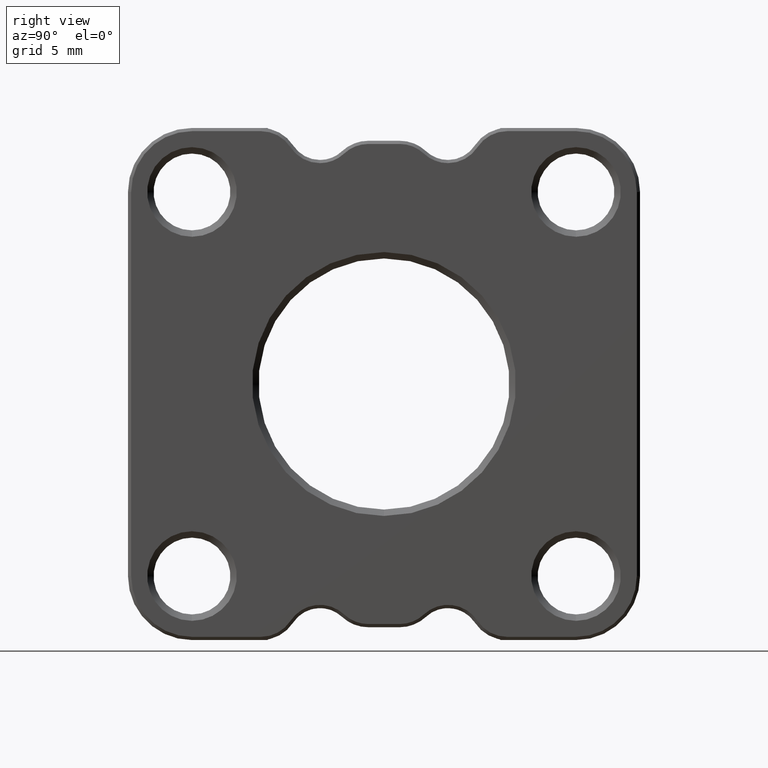
[diagram: clean part render]
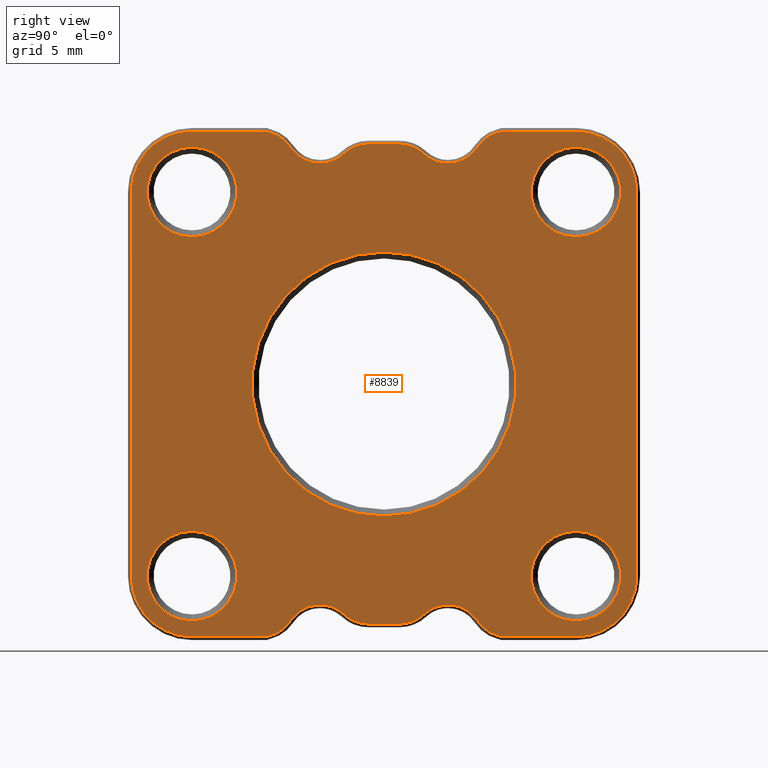
[diagram: same view with one face highlighted and labeled with its STEP entity id]
A machine part, right view. The second image highlights one B-rep face of the part: STEP entity #8839.
In plain terms, the highlighted planar face has unit normal (1, 0, 0).
Its self-contained STEP definition (entity closure, byte-faithful):
#46 = CIRCLE ( 'NONE', #1817, 2.749999999999999112 ) ;
#49 = DIRECTION ( 'NONE',  ( -1.000000000000000000, -0.000000000000000000, -0.000000000000000000 ) ) ;
#112 = FACE_BOUND ( 'NONE', #7837, .T. ) ;
#124 = AXIS2_PLACEMENT_3D ( 'NONE', #5749, #2857, #2245 ) ;
#142 = EDGE_CURVE ( 'NONE', #9167, #8801, #4616, .T. ) ;
#205 = CARTESIAN_POINT ( 'NONE',  ( -10.70960063692994879, 9.414187337732332850, 58.50000000000000711 ) ) ;
#224 = CARTESIAN_POINT ( 'NONE',  ( -10.70960063692994879, 2.109301223409109749, 40.00000000000001421 ) ) ;
#249 = DIRECTION ( 'NONE',  ( -1.000000000000000000, -0.000000000000000000, -0.000000000000000000 ) ) ;
#256 = DIRECTION ( 'NONE',  ( 0.000000000000000000, 0.000000000000000000, -1.000000000000000000 ) ) ;
#257 = LINE ( 'NONE', #3648, #5755 ) ;
#329 = CARTESIAN_POINT ( 'NONE',  ( -10.70960063692994879, 7.109301223409107529, 57.25000000000000711 ) ) ;
#345 = CIRCLE ( 'NONE', #4695, 2.750000000000002665 ) ;
#435 = VERTEX_POINT ( 'NONE', #2900 ) ;
#438 = EDGE_CURVE ( 'NONE', #2528, #3605, #8250, .T. ) ;
#503 = EDGE_CURVE ( 'NONE', #1560, #1470, #4861, .T. ) ;
#520 = CARTESIAN_POINT ( 'NONE',  ( -10.70960063692994879, 3.334384005773724624, 21.25000000000001421 ) ) ;
#541 = VERTEX_POINT ( 'NONE', #5083 ) ;
#566 = EDGE_CURVE ( 'NONE', #4600, #6508, #5985, .T. ) ;
#580 = EDGE_CURVE ( 'NONE', #5831, #5120, #1177, .T. ) ;
#584 = CARTESIAN_POINT ( 'NONE',  ( -10.70960063692994879, -7.500471005237348443, 20.25000000000000711 ) ) ;
#651 = CARTESIAN_POINT ( 'NONE',  ( -10.70960063692994879, 7.109301223409107529, 60.00000000000001421 ) ) ;
#652 = AXIS2_PLACEMENT_3D ( 'NONE', #651, #5642, #1381 ) ;
#665 = ORIENTED_EDGE ( 'NONE', *, *, #8200, .T. ) ;
#675 = CARTESIAN_POINT ( 'NONE',  ( -10.70960063692994879, 7.109301223409107529, 60.00000000000001421 ) ) ;
#711 = ORIENTED_EDGE ( 'NONE', *, *, #7652, .T. ) ;
#725 = CARTESIAN_POINT ( 'NONE',  ( -10.70960063692994879, 11.71907345205555906, 23.00000000000001066 ) ) ;
#756 = EDGE_CURVE ( 'NONE', #3605, #2528, #5043, .T. ) ;
#799 = CIRCLE ( 'NONE', #2563, 2.749999999999999112 ) ;
#850 = EDGE_LOOP ( 'NONE', ( #5809, #711 ) ) ;
#887 = EDGE_CURVE ( 'NONE', #6148, #5294, #8225, .T. ) ;
#939 = DIRECTION ( 'NONE',  ( 0.000000000000000000, -1.000000000000000000, 0.000000000000000000 ) ) ;
#948 = VECTOR ( 'NONE', #8593, 1000.000000000000000 ) ;
#994 = ORIENTED_EDGE ( 'NONE', *, *, #756, .T. ) ;
#1021 = CARTESIAN_POINT ( 'NONE',  ( -10.70960063692994879, -2.890698776590892916, 20.00000000000002132 ) ) ;
#1036 = CARTESIAN_POINT ( 'NONE',  ( -10.70960063692994879, 3.334384005773724624, 24.00000000000001421 ) ) ;
#1096 = DIRECTION ( 'NONE',  ( 1.000000000000000000, 0.000000000000000000, 0.000000000000000000 ) ) ;
#1116 = DIRECTION ( 'NONE',  ( -1.000000000000000000, -0.000000000000000000, -0.000000000000000000 ) ) ;
#1134 = AXIS2_PLACEMENT_3D ( 'NONE', #4858, #2029, #2132 ) ;
#1140 = DIRECTION ( 'NONE',  ( 0.000000000000000000, 0.000000000000000000, -1.000000000000000000 ) ) ;
#1162 = DIRECTION ( 'NONE',  ( 1.000000000000000000, 0.000000000000000000, 0.000000000000000000 ) ) ;
#1177 = LINE ( 'NONE', #7219, #948 ) ;
#1199 = CARTESIAN_POINT ( 'NONE',  ( -10.70960063692994879, 11.71907345205555906, 20.25000000000001066 ) ) ;
#1208 = AXIS2_PLACEMENT_3D ( 'NONE', #8886, #1867, #5307 ) ;
#1231 = DIRECTION ( 'NONE',  ( -1.000000000000000000, -0.000000000000000000, -0.000000000000000000 ) ) ;
#1234 = AXIS2_PLACEMENT_3D ( 'NONE', #7018, #3539, #4897 ) ;
#1265 = DIRECTION ( 'NONE',  ( 0.000000000000000000, -1.000000000000000000, -8.673617379884035472E-17 ) ) ;
#1300 = VERTEX_POINT ( 'NONE', #4722 ) ;
#1317 = VERTEX_POINT ( 'NONE', #9162 ) ;
#1362 = ORIENTED_EDGE ( 'NONE', *, *, #3434, .T. ) ;
#1381 = DIRECTION ( 'NONE',  ( 0.000000000000000000, 0.000000000000000000, -1.000000000000000000 ) ) ;
#1384 = DIRECTION ( 'NONE',  ( 0.000000000000000000, -1.000000000000000000, -8.673617379884035472E-17 ) ) ;
#1402 = LINE ( 'NONE', #9101, #1640 ) ;
#1412 = VERTEX_POINT ( 'NONE', #7118 ) ;
#1428 = DIRECTION ( 'NONE',  ( 0.000000000000000000, 0.000000000000000000, -1.000000000000000000 ) ) ;
#1454 = CARTESIAN_POINT ( 'NONE',  ( -10.70960063692994879, 3.334384005773724624, 56.00000000000001421 ) ) ;
#1470 = VERTEX_POINT ( 'NONE', #1513 ) ;
#1480 = CARTESIAN_POINT ( 'NONE',  ( -10.70960063692994879, 0.8842184410444899889, 24.00000000000001421 ) ) ;
#1513 = CARTESIAN_POINT ( 'NONE',  ( -10.70960063692994879, -12.89069877659088981, 58.50000000000002132 ) ) ;
#1539 = EDGE_CURVE ( 'NONE', #4856, #7739, #1904, .T. ) ;
#1560 = VERTEX_POINT ( 'NONE', #6845 ) ;
#1609 = AXIS2_PLACEMENT_3D ( 'NONE', #5735, #7221, #6605 ) ;
#1640 = VECTOR ( 'NONE', #1265, 1000.000000000000000 ) ;
#1679 = CARTESIAN_POINT ( 'NONE',  ( -10.70960063692994879, 0.8842184410444899889, 58.75000000000000711 ) ) ;
#1717 = LINE ( 'NONE', #8416, #7645 ) ;
#1730 = DIRECTION ( 'NONE',  ( 0.000000000000000000, 0.000000000000000000, -1.000000000000000000 ) ) ;
#1817 = AXIS2_PLACEMENT_3D ( 'NONE', #1036, #6803, #3174 ) ;
#1836 = DIRECTION ( 'NONE',  ( 0.000000000000000000, 0.000000000000000000, -1.000000000000000000 ) ) ;
#1838 = VECTOR ( 'NONE', #939, 1000.000000000000000 ) ;
#1859 = EDGE_CURVE ( 'NONE', #2207, #1412, #8245, .T. ) ;
#1867 = DIRECTION ( 'NONE',  ( -1.000000000000000000, -0.000000000000000000, -0.000000000000000000 ) ) ;
#1904 = CIRCLE ( 'NONE', #3769, 2.750000000000002665 ) ;
#1997 = CARTESIAN_POINT ( 'NONE',  ( -10.70960063692994879, -12.89069877659088981, 21.50000000000002487 ) ) ;
#2029 = DIRECTION ( 'NONE',  ( -1.000000000000000000, -0.000000000000000000, -0.000000000000000000 ) ) ;
#2132 = DIRECTION ( 'NONE',  ( 0.000000000000000000, 0.000000000000000000, -1.000000000000000000 ) ) ;
#2191 = ORIENTED_EDGE ( 'NONE', *, *, #1539, .T. ) ;
#2207 = VERTEX_POINT ( 'NONE', #5480 ) ;
#2244 = CARTESIAN_POINT ( 'NONE',  ( -10.70960063692994879, 21.85930122340910842, 55.00000000000000711 ) ) ;
#2245 = DIRECTION ( 'NONE',  ( 0.000000000000000000, 9.462128050782575008E-16, -1.000000000000000000 ) ) ;
#2254 = ORIENTED_EDGE ( 'NONE', *, *, #8099, .T. ) ;
#2274 = EDGE_CURVE ( 'NONE', #1412, #4864, #7300, .T. ) ;
#2315 = CIRCLE ( 'NONE', #8147, 4.750000000000000888 ) ;
#2360 = CARTESIAN_POINT ( 'NONE',  ( -10.70960063692994879, -17.64069877659089869, 25.00000000000000355 ) ) ;
#2404 = DIRECTION ( 'NONE',  ( 0.000000000000000000, 0.000000000000000000, -1.000000000000000000 ) ) ;
#2414 = DIRECTION ( 'NONE',  ( 0.000000000000000000, 0.000000000000000000, -1.000000000000000000 ) ) ;
#2439 = AXIS2_PLACEMENT_3D ( 'NONE', #4040, #1096, #5426 ) ;
#2473 = ORIENTED_EDGE ( 'NONE', *, *, #4725, .T. ) ;
#2482 = VERTEX_POINT ( 'NONE', #7991 ) ;
#2528 = VERTEX_POINT ( 'NONE', #3226 ) ;
#2542 = ORIENTED_EDGE ( 'NONE', *, *, #5293, .T. ) ;
#2562 = DIRECTION ( 'NONE',  ( 0.000000000000000000, 0.000000000000000000, -1.000000000000000000 ) ) ;
#2563 = AXIS2_PLACEMENT_3D ( 'NONE', #1021, #1116, #1730 ) ;
#2581 = ORIENTED_EDGE ( 'NONE', *, *, #142, .T. ) ;
#2654 = EDGE_LOOP ( 'NONE', ( #994, #3032 ) ) ;
#2665 = EDGE_LOOP ( 'NONE', ( #6160, #2581 ) ) ;
#2692 = CARTESIAN_POINT ( 'NONE',  ( -10.70960063692994879, -2.890698776590892916, 60.00000000000001421 ) ) ;
#2793 = DIRECTION ( 'NONE',  ( 1.000000000000000000, 0.000000000000000000, 0.000000000000000000 ) ) ;
#2806 = AXIS2_PLACEMENT_3D ( 'NONE', #725, #2793, #1428 ) ;
#2823 = AXIS2_PLACEMENT_3D ( 'NONE', #3905, #4573, #256 ) ;
#2828 = DIRECTION ( 'NONE',  ( 0.000000000000000000, 8.042808843165188066E-15, -1.000000000000000000 ) ) ;
#2857 = DIRECTION ( 'NONE',  ( -1.000000000000000000, -0.000000000000000000, -0.000000000000000000 ) ) ;
#2875 = DIRECTION ( 'NONE',  ( -1.000000000000000000, -0.000000000000000000, -0.000000000000000000 ) ) ;
#2880 = CIRCLE ( 'NONE', #4892, 2.749999999999995559 ) ;
#2900 = CARTESIAN_POINT ( 'NONE',  ( -10.70960063692994879, 17.10930122340910486, 59.75000000000001421 ) ) ;
#2933 = VERTEX_POINT ( 'NONE', #5645 ) ;
#2959 = EDGE_CURVE ( 'NONE', #435, #8818, #257, .T. ) ;
#3032 = ORIENTED_EDGE ( 'NONE', *, *, #438, .T. ) ;
#3033 = VERTEX_POINT ( 'NONE', #205 ) ;
#3084 = ORIENTED_EDGE ( 'NONE', *, *, #580, .T. ) ;
#3174 = DIRECTION ( 'NONE',  ( 0.000000000000000000, 0.000000000000000000, -1.000000000000000000 ) ) ;
#3189 = CARTESIAN_POINT ( 'NONE',  ( -10.70960063692994879, -17.64069877659089158, 25.00000000000000355 ) ) ;
#3226 = CARTESIAN_POINT ( 'NONE',  ( -10.70960063692994879, 17.10930122340911197, 28.50000000000002487 ) ) ;
#3306 = AXIS2_PLACEMENT_3D ( 'NONE', #2692, #7783, #2828 ) ;
#3360 = CARTESIAN_POINT ( 'NONE',  ( -10.70960063692994879, -7.500471005237337785, 57.00000000000000711 ) ) ;
#3362 = DIRECTION ( 'NONE',  ( 0.000000000000000000, 0.000000000000000000, -1.000000000000000000 ) ) ;
#3434 = EDGE_CURVE ( 'NONE', #3033, #6152, #345, .T. ) ;
#3445 = AXIS2_PLACEMENT_3D ( 'NONE', #3726, #3692, #8631 ) ;
#3451 = CARTESIAN_POINT ( 'NONE',  ( -10.70960063692994879, 3.334384005773724624, 21.25000000000001421 ) ) ;
#3477 = VERTEX_POINT ( 'NONE', #584 ) ;
#3486 = CARTESIAN_POINT ( 'NONE',  ( -10.70960063692994879, -5.195584890914118681, 21.50000000000001421 ) ) ;
#3496 = CIRCLE ( 'NONE', #6531, 3.500000000000010214 ) ;
#3539 = DIRECTION ( 'NONE',  ( -1.000000000000000000, -0.000000000000000000, -0.000000000000000000 ) ) ;
#3569 = ORIENTED_EDGE ( 'NONE', *, *, #887, .T. ) ;
#3601 = ORIENTED_EDGE ( 'NONE', *, *, #6213, .T. ) ;
#3605 = VERTEX_POINT ( 'NONE', #5192 ) ;
#3616 = DIRECTION ( 'NONE',  ( 1.000000000000000000, 0.000000000000000000, 0.000000000000000000 ) ) ;
#3648 = CARTESIAN_POINT ( 'NONE',  ( -10.70960063692994879, 11.71907345205555373, 59.75000000000001421 ) ) ;
#3674 = EDGE_CURVE ( 'NONE', #5816, #8716, #799, .T. ) ;
#3692 = DIRECTION ( 'NONE',  ( -1.000000000000000000, -0.000000000000000000, -0.000000000000000000 ) ) ;
#3718 = CARTESIAN_POINT ( 'NONE',  ( -10.70960063692994879, -2.890698776590892916, 60.00000000000001421 ) ) ;
#3726 = CARTESIAN_POINT ( 'NONE',  ( -10.70960063692994879, -12.89069877659088981, 55.00000000000001421 ) ) ;
#3741 = DIRECTION ( 'NONE',  ( 0.000000000000000000, 0.000000000000000000, -1.000000000000000000 ) ) ;
#3752 = FACE_OUTER_BOUND ( 'NONE', #4996, .T. ) ;
#3769 = AXIS2_PLACEMENT_3D ( 'NONE', #3360, #8343, #1140 ) ;
#3802 = CIRCLE ( 'NONE', #6760, 2.750000000000002665 ) ;
#3842 = LINE ( 'NONE', #7571, #5457 ) ;
#3899 = AXIS2_PLACEMENT_3D ( 'NONE', #8220, #3956, #2404 ) ;
#3905 = CARTESIAN_POINT ( 'NONE',  ( -10.70960063692994879, 17.10930122340910486, 55.00000000000000711 ) ) ;
#3926 = CARTESIAN_POINT ( 'NONE',  ( -10.70960063692994879, -12.89069877659088981, 55.00000000000001421 ) ) ;
#3954 = VERTEX_POINT ( 'NONE', #7883 ) ;
#3956 = DIRECTION ( 'NONE',  ( -1.000000000000000000, -0.000000000000000000, -0.000000000000000000 ) ) ;
#3993 = AXIS2_PLACEMENT_3D ( 'NONE', #7746, #1231, #3362 ) ;
#4004 = ORIENTED_EDGE ( 'NONE', *, *, #5600, .T. ) ;
#4040 = CARTESIAN_POINT ( 'NONE',  ( -10.70960063692994879, -12.89069877659089691, 25.00000000000000711 ) ) ;
#4090 = DIRECTION ( 'NONE',  ( 0.000000000000000000, 0.000000000000000000, -1.000000000000000000 ) ) ;
#4139 = CIRCLE ( 'NONE', #3899, 3.499999999999989342 ) ;
#4277 = ORIENTED_EDGE ( 'NONE', *, *, #7282, .T. ) ;
#4324 = DIRECTION ( 'NONE',  ( 0.000000000000000000, 0.000000000000000000, -1.000000000000000000 ) ) ;
#4327 = CARTESIAN_POINT ( 'NONE',  ( -10.70960063692994879, 2.109301223409109749, 29.69300000000001205 ) ) ;
#4405 = ORIENTED_EDGE ( 'NONE', *, *, #1859, .T. ) ;
#4463 = CIRCLE ( 'NONE', #5955, 4.750000000000004441 ) ;
#4547 = EDGE_CURVE ( 'NONE', #8716, #6672, #7768, .T. ) ;
#4573 = DIRECTION ( 'NONE',  ( 1.000000000000000000, 0.000000000000000000, 0.000000000000000000 ) ) ;
#4600 = VERTEX_POINT ( 'NONE', #5834 ) ;
#4616 = CIRCLE ( 'NONE', #6156, 10.30700000000000394 ) ;
#4619 = DIRECTION ( 'NONE',  ( 0.000000000000000000, 0.000000000000000000, -1.000000000000000000 ) ) ;
#4667 = ORIENTED_EDGE ( 'NONE', *, *, #7029, .T. ) ;
#4689 = CARTESIAN_POINT ( 'NONE',  ( -10.70960063692994879, -12.89069877659088981, 28.50000000000000355 ) ) ;
#4691 = CARTESIAN_POINT ( 'NONE',  ( -10.70960063692994879, 17.10930122340911197, 55.00000000000001421 ) ) ;
#4693 = CARTESIAN_POINT ( 'NONE',  ( -10.70960063692994879, -12.89069877659089336, 55.00000000000000711 ) ) ;
#4695 = AXIS2_PLACEMENT_3D ( 'NONE', #675, #2875, #7050 ) ;
#4722 = CARTESIAN_POINT ( 'NONE',  ( -10.70960063692994879, 17.10930122340911197, 51.50000000000000711 ) ) ;
#4725 = EDGE_CURVE ( 'NONE', #5294, #6148, #4139, .T. ) ;
#4729 = CARTESIAN_POINT ( 'NONE',  ( -10.70960063692994879, -5.195584890914117793, 58.50000000000000711 ) ) ;
#4856 = VERTEX_POINT ( 'NONE', #4729 ) ;
#4858 = CARTESIAN_POINT ( 'NONE',  ( -10.70960063692994879, 17.10930122340911197, 25.00000000000001421 ) ) ;
#4861 = CIRCLE ( 'NONE', #3445, 3.500000000000010214 ) ;
#4864 = VERTEX_POINT ( 'NONE', #1199 ) ;
#4892 = AXIS2_PLACEMENT_3D ( 'NONE', #1454, #6425, #5784 ) ;
#4894 = CIRCLE ( 'NONE', #6439, 2.749999999999999112 ) ;
#4897 = DIRECTION ( 'NONE',  ( 0.000000000000000000, 0.000000000000000000, -1.000000000000000000 ) ) ;
#4898 = ORIENTED_EDGE ( 'NONE', *, *, #4547, .T. ) ;
#4931 = FACE_BOUND ( 'NONE', #6137, .T. ) ;
#4996 = EDGE_LOOP ( 'NONE', ( #6633, #5206, #2254, #7255, #665, #5405, #4898, #3601, #4277, #4405, #6588, #9181, #4004, #3084, #7407, #6602, #8027, #1362, #9286, #9169, #8312, #8923, #2542, #4667, #2191, #5572 ) ) ;
#5043 = CIRCLE ( 'NONE', #1208, 3.500000000000010214 ) ;
#5083 = CARTESIAN_POINT ( 'NONE',  ( -10.70960063692994879, 17.10930122340911197, 58.50000000000002132 ) ) ;
#5120 = VERTEX_POINT ( 'NONE', #2244 ) ;
#5192 = CARTESIAN_POINT ( 'NONE',  ( -10.70960063692994879, 17.10930122340911197, 21.50000000000000355 ) ) ;
#5206 = ORIENTED_EDGE ( 'NONE', *, *, #6549, .T. ) ;
#5240 = EDGE_CURVE ( 'NONE', #5120, #435, #6736, .T. ) ;
#5243 = FACE_BOUND ( 'NONE', #2665, .T. ) ;
#5253 = FACE_BOUND ( 'NONE', #850, .T. ) ;
#5293 = EDGE_CURVE ( 'NONE', #6508, #3954, #8479, .T. ) ;
#5294 = VERTEX_POINT ( 'NONE', #1997 ) ;
#5302 = AXIS2_PLACEMENT_3D ( 'NONE', #5860, #5732, #4324 ) ;
#5307 = DIRECTION ( 'NONE',  ( 0.000000000000000000, 0.000000000000000000, -1.000000000000000000 ) ) ;
#5326 = DIRECTION ( 'NONE',  ( 0.000000000000000000, 0.000000000000000000, -1.000000000000000000 ) ) ;
#5374 = CIRCLE ( 'NONE', #1234, 3.500000000000010214 ) ;
#5405 = ORIENTED_EDGE ( 'NONE', *, *, #3674, .T. ) ;
#5408 = VECTOR ( 'NONE', #2414, 1000.000000000000000 ) ;
#5426 = DIRECTION ( 'NONE',  ( 0.000000000000000000, 0.000000000000000000, -1.000000000000000000 ) ) ;
#5457 = VECTOR ( 'NONE', #8288, 1000.000000000000000 ) ;
#5480 = CARTESIAN_POINT ( 'NONE',  ( -10.70960063692994879, 5.221842614591415632, 22.00000000000002132 ) ) ;
#5493 = CARTESIAN_POINT ( 'NONE',  ( -10.70960063692994879, -12.89069877659089691, 20.25000000000001066 ) ) ;
#5544 = EDGE_CURVE ( 'NONE', #8818, #3033, #3802, .T. ) ;
#5547 = DIRECTION ( 'NONE',  ( 0.000000000000000000, 1.000000000000000000, 8.673617379884035472E-17 ) ) ;
#5572 = ORIENTED_EDGE ( 'NONE', *, *, #5724, .T. ) ;
#5600 = EDGE_CURVE ( 'NONE', #8907, #5831, #2315, .T. ) ;
#5642 = DIRECTION ( 'NONE',  ( -1.000000000000000000, -0.000000000000000000, -0.000000000000000000 ) ) ;
#5645 = CARTESIAN_POINT ( 'NONE',  ( -10.70960063692994879, -17.64069877659089158, 55.00000000000000711 ) ) ;
#5724 = EDGE_CURVE ( 'NONE', #7739, #7400, #1402, .T. ) ;
#5732 = DIRECTION ( 'NONE',  ( 1.000000000000000000, 0.000000000000000000, 0.000000000000000000 ) ) ;
#5735 = CARTESIAN_POINT ( 'NONE',  ( -10.70960063692994879, 2.109301223409109749, 40.00000000000001421 ) ) ;
#5749 = CARTESIAN_POINT ( 'NONE',  ( -10.70960063692994879, 7.109301223409107529, 20.00000000000002132 ) ) ;
#5755 = VECTOR ( 'NONE', #1384, 1000.000000000000000 ) ;
#5762 = ORIENTED_EDGE ( 'NONE', *, *, #9255, .T. ) ;
#5769 = CARTESIAN_POINT ( 'NONE',  ( -10.70960063692994879, -1.003240167773201463, 58.00000000000000711 ) ) ;
#5784 = DIRECTION ( 'NONE',  ( 0.000000000000000000, 0.000000000000000000, -1.000000000000000000 ) ) ;
#5809 = ORIENTED_EDGE ( 'NONE', *, *, #503, .T. ) ;
#5816 = VERTEX_POINT ( 'NONE', #3486 ) ;
#5821 = FACE_BOUND ( 'NONE', #2654, .T. ) ;
#5831 = VERTEX_POINT ( 'NONE', #7038 ) ;
#5834 = CARTESIAN_POINT ( 'NONE',  ( -10.70960063692994879, 0.8842184410444899889, 58.75000000000000711 ) ) ;
#5860 = CARTESIAN_POINT ( 'NONE',  ( -10.70960063692994879, 0.8842184410444899889, 56.00000000000001421 ) ) ;
#5895 = EDGE_CURVE ( 'NONE', #1317, #2482, #2880, .T. ) ;
#5942 = ORIENTED_EDGE ( 'NONE', *, *, #8552, .T. ) ;
#5955 = AXIS2_PLACEMENT_3D ( 'NONE', #4693, #1162, #5326 ) ;
#5983 = EDGE_CURVE ( 'NONE', #2482, #4600, #7770, .T. ) ;
#5985 = CIRCLE ( 'NONE', #5302, 2.749999999999995559 ) ;
#6072 = DIRECTION ( 'NONE',  ( 1.000000000000000000, 0.000000000000000000, 0.000000000000000000 ) ) ;
#6137 = EDGE_LOOP ( 'NONE', ( #2473, #3569 ) ) ;
#6148 = VERTEX_POINT ( 'NONE', #4689 ) ;
#6152 = VERTEX_POINT ( 'NONE', #329 ) ;
#6156 = AXIS2_PLACEMENT_3D ( 'NONE', #224, #249, #7431 ) ;
#6160 = ORIENTED_EDGE ( 'NONE', *, *, #6948, .T. ) ;
#6174 = CARTESIAN_POINT ( 'NONE',  ( -10.70960063692994879, -7.500471005237337785, 59.75000000000001421 ) ) ;
#6192 = DIRECTION ( 'NONE',  ( 0.000000000000000000, 1.000000000000000000, 0.000000000000000000 ) ) ;
#6213 = EDGE_CURVE ( 'NONE', #6672, #7302, #6745, .T. ) ;
#6296 = CARTESIAN_POINT ( 'NONE',  ( -10.70960063692994879, 2.109301223409109749, 40.00000000000001421 ) ) ;
#6343 = CARTESIAN_POINT ( 'NONE',  ( -10.70960063692994879, 11.71907345205555373, 59.75000000000001421 ) ) ;
#6401 = EDGE_CURVE ( 'NONE', #6152, #1317, #9206, .T. ) ;
#6425 = DIRECTION ( 'NONE',  ( 1.000000000000000000, 0.000000000000000000, 0.000000000000000000 ) ) ;
#6439 = AXIS2_PLACEMENT_3D ( 'NONE', #9289, #3616, #4090 ) ;
#6443 = DIRECTION ( 'NONE',  ( 1.000000000000000000, 0.000000000000000000, 0.000000000000000000 ) ) ;
#6508 = VERTEX_POINT ( 'NONE', #5769 ) ;
#6530 = DIRECTION ( 'NONE',  ( 0.000000000000000000, 0.000000000000000000, -1.000000000000000000 ) ) ;
#6531 = AXIS2_PLACEMENT_3D ( 'NONE', #4691, #9001, #8277 ) ;
#6544 = DIRECTION ( 'NONE',  ( 0.000000000000000000, 0.000000000000000000, -1.000000000000000000 ) ) ;
#6549 = EDGE_CURVE ( 'NONE', #2933, #6600, #7360, .T. ) ;
#6588 = ORIENTED_EDGE ( 'NONE', *, *, #2274, .T. ) ;
#6600 = VERTEX_POINT ( 'NONE', #2360 ) ;
#6602 = ORIENTED_EDGE ( 'NONE', *, *, #2959, .T. ) ;
#6605 = DIRECTION ( 'NONE',  ( 0.000000000000000000, 0.000000000000000000, -1.000000000000000000 ) ) ;
#6633 = ORIENTED_EDGE ( 'NONE', *, *, #8110, .T. ) ;
#6672 = VERTEX_POINT ( 'NONE', #7547 ) ;
#6720 = AXIS2_PLACEMENT_3D ( 'NONE', #6296, #49, #3741 ) ;
#6736 = CIRCLE ( 'NONE', #2823, 4.750000000000004441 ) ;
#6745 = LINE ( 'NONE', #520, #7888 ) ;
#6760 = AXIS2_PLACEMENT_3D ( 'NONE', #7342, #6072, #1836 ) ;
#6803 = DIRECTION ( 'NONE',  ( 1.000000000000000000, 0.000000000000000000, 0.000000000000000000 ) ) ;
#6845 = CARTESIAN_POINT ( 'NONE',  ( -10.70960063692994879, -12.89069877659088981, 51.50000000000000711 ) ) ;
#6877 = DIRECTION ( 'NONE',  ( 1.000000000000000000, 0.000000000000000000, 0.000000000000000000 ) ) ;
#6948 = EDGE_CURVE ( 'NONE', #8801, #9167, #7178, .T. ) ;
#7018 = CARTESIAN_POINT ( 'NONE',  ( -10.70960063692994879, 17.10930122340911197, 55.00000000000001421 ) ) ;
#7029 = EDGE_CURVE ( 'NONE', #3954, #4856, #8814, .T. ) ;
#7038 = CARTESIAN_POINT ( 'NONE',  ( -10.70960063692994879, 21.85930122340910842, 25.00000000000000711 ) ) ;
#7050 = DIRECTION ( 'NONE',  ( 0.000000000000000000, 5.361872562110125640E-15, -1.000000000000000000 ) ) ;
#7082 = PLANE ( 'NONE',  #1609 ) ;
#7118 = CARTESIAN_POINT ( 'NONE',  ( -10.70960063692994879, 9.414187337732336402, 21.50000000000001421 ) ) ;
#7174 = AXIS2_PLACEMENT_3D ( 'NONE', #3926, #8890, #4619 ) ;
#7178 = CIRCLE ( 'NONE', #6720, 10.30700000000000394 ) ;
#7219 = CARTESIAN_POINT ( 'NONE',  ( -10.70960063692994879, 21.85930122340910842, 55.00000000000000711 ) ) ;
#7221 = DIRECTION ( 'NONE',  ( 1.000000000000000000, 0.000000000000000000, 0.000000000000000000 ) ) ;
#7255 = ORIENTED_EDGE ( 'NONE', *, *, #8628, .T. ) ;
#7282 = EDGE_CURVE ( 'NONE', #7302, #2207, #46, .T. ) ;
#7300 = CIRCLE ( 'NONE', #2806, 2.749999999999999112 ) ;
#7302 = VERTEX_POINT ( 'NONE', #3451 ) ;
#7309 = VERTEX_POINT ( 'NONE', #5493 ) ;
#7342 = CARTESIAN_POINT ( 'NONE',  ( -10.70960063692994879, 11.71907345205555373, 57.00000000000000711 ) ) ;
#7360 = LINE ( 'NONE', #3189, #5408 ) ;
#7400 = VERTEX_POINT ( 'NONE', #9095 ) ;
#7407 = ORIENTED_EDGE ( 'NONE', *, *, #5240, .T. ) ;
#7431 = DIRECTION ( 'NONE',  ( 0.000000000000000000, 0.000000000000000000, -1.000000000000000000 ) ) ;
#7547 = CARTESIAN_POINT ( 'NONE',  ( -10.70960063692994879, 0.8842184410444899889, 21.25000000000001421 ) ) ;
#7571 = CARTESIAN_POINT ( 'NONE',  ( -10.70960063692994879, 17.10930122340910486, 20.25000000000001066 ) ) ;
#7645 = VECTOR ( 'NONE', #5547, 1000.000000000000000 ) ;
#7652 = EDGE_CURVE ( 'NONE', #1470, #1560, #8423, .T. ) ;
#7739 = VERTEX_POINT ( 'NONE', #6174 ) ;
#7746 = CARTESIAN_POINT ( 'NONE',  ( -10.70960063692994879, -12.89069877659088981, 25.00000000000001421 ) ) ;
#7768 = CIRCLE ( 'NONE', #8259, 2.749999999999999112 ) ;
#7770 = LINE ( 'NONE', #1679, #1838 ) ;
#7783 = DIRECTION ( 'NONE',  ( -1.000000000000000000, -0.000000000000000000, -0.000000000000000000 ) ) ;
#7837 = EDGE_LOOP ( 'NONE', ( #5762, #5942 ) ) ;
#7883 = CARTESIAN_POINT ( 'NONE',  ( -10.70960063692994879, -2.890698776590892916, 57.25000000000000711 ) ) ;
#7888 = VECTOR ( 'NONE', #6192, 1000.000000000000000 ) ;
#7890 = DIRECTION ( 'NONE',  ( -1.000000000000000000, -0.000000000000000000, -0.000000000000000000 ) ) ;
#7922 = CARTESIAN_POINT ( 'NONE',  ( -10.70960063692994879, 2.109301223409111081, 50.30700000000001637 ) ) ;
#7991 = CARTESIAN_POINT ( 'NONE',  ( -10.70960063692994879, 3.334384005773724624, 58.75000000000000711 ) ) ;
#8027 = ORIENTED_EDGE ( 'NONE', *, *, #5544, .T. ) ;
#8050 = CARTESIAN_POINT ( 'NONE',  ( -10.70960063692994879, 17.10930122340910486, 20.25000000000000711 ) ) ;
#8057 = AXIS2_PLACEMENT_3D ( 'NONE', #3718, #7890, #6530 ) ;
#8099 = EDGE_CURVE ( 'NONE', #6600, #7309, #8264, .T. ) ;
#8110 = EDGE_CURVE ( 'NONE', #7400, #2933, #4463, .T. ) ;
#8147 = AXIS2_PLACEMENT_3D ( 'NONE', #9011, #6877, #2562 ) ;
#8200 = EDGE_CURVE ( 'NONE', #3477, #5816, #4894, .T. ) ;
#8220 = CARTESIAN_POINT ( 'NONE',  ( -10.70960063692994879, -12.89069877659088981, 25.00000000000001421 ) ) ;
#8225 = CIRCLE ( 'NONE', #3993, 3.499999999999989342 ) ;
#8245 = CIRCLE ( 'NONE', #124, 2.750000000000002665 ) ;
#8250 = CIRCLE ( 'NONE', #1134, 3.500000000000010214 ) ;
#8259 = AXIS2_PLACEMENT_3D ( 'NONE', #1480, #6443, #6544 ) ;
#8264 = CIRCLE ( 'NONE', #2439, 4.750000000000000888 ) ;
#8277 = DIRECTION ( 'NONE',  ( 0.000000000000000000, 0.000000000000000000, -1.000000000000000000 ) ) ;
#8288 = DIRECTION ( 'NONE',  ( 0.000000000000000000, 1.000000000000000000, 8.673617379884035472E-17 ) ) ;
#8312 = ORIENTED_EDGE ( 'NONE', *, *, #5983, .T. ) ;
#8343 = DIRECTION ( 'NONE',  ( 1.000000000000000000, 0.000000000000000000, 0.000000000000000000 ) ) ;
#8416 = CARTESIAN_POINT ( 'NONE',  ( -10.70960063692994879, -7.500471005237348443, 20.25000000000001066 ) ) ;
#8423 = CIRCLE ( 'NONE', #7174, 3.500000000000010214 ) ;
#8479 = CIRCLE ( 'NONE', #3306, 2.750000000000002665 ) ;
#8552 = EDGE_CURVE ( 'NONE', #541, #1300, #5374, .T. ) ;
#8593 = DIRECTION ( 'NONE',  ( 0.000000000000000000, 0.000000000000000000, 1.000000000000000000 ) ) ;
#8628 = EDGE_CURVE ( 'NONE', #7309, #3477, #1717, .T. ) ;
#8631 = DIRECTION ( 'NONE',  ( 0.000000000000000000, 0.000000000000000000, -1.000000000000000000 ) ) ;
#8716 = VERTEX_POINT ( 'NONE', #8928 ) ;
#8801 = VERTEX_POINT ( 'NONE', #4327 ) ;
#8814 = CIRCLE ( 'NONE', #8057, 2.750000000000002665 ) ;
#8818 = VERTEX_POINT ( 'NONE', #6343 ) ;
#8839 = ADVANCED_FACE ( 'NONE', ( #5821, #4931, #5253, #112, #3752, #5243 ), #7082, .T. ) ;
#8886 = CARTESIAN_POINT ( 'NONE',  ( -10.70960063692994879, 17.10930122340911197, 25.00000000000001421 ) ) ;
#8890 = DIRECTION ( 'NONE',  ( -1.000000000000000000, -0.000000000000000000, -0.000000000000000000 ) ) ;
#8907 = VERTEX_POINT ( 'NONE', #8050 ) ;
#8923 = ORIENTED_EDGE ( 'NONE', *, *, #566, .T. ) ;
#8928 = CARTESIAN_POINT ( 'NONE',  ( -10.70960063692994879, -1.003240167773202351, 22.00000000000002132 ) ) ;
#9001 = DIRECTION ( 'NONE',  ( -1.000000000000000000, -0.000000000000000000, -0.000000000000000000 ) ) ;
#9011 = CARTESIAN_POINT ( 'NONE',  ( -10.70960063692994879, 17.10930122340910486, 25.00000000000000711 ) ) ;
#9088 = EDGE_CURVE ( 'NONE', #4864, #8907, #3842, .T. ) ;
#9095 = CARTESIAN_POINT ( 'NONE',  ( -10.70960063692994879, -12.89069877659089691, 59.75000000000001421 ) ) ;
#9101 = CARTESIAN_POINT ( 'NONE',  ( -10.70960063692994879, -12.89069877659089691, 59.75000000000001421 ) ) ;
#9162 = CARTESIAN_POINT ( 'NONE',  ( -10.70960063692994879, 5.221842614591416520, 58.00000000000000711 ) ) ;
#9167 = VERTEX_POINT ( 'NONE', #7922 ) ;
#9169 = ORIENTED_EDGE ( 'NONE', *, *, #5895, .T. ) ;
#9181 = ORIENTED_EDGE ( 'NONE', *, *, #9088, .T. ) ;
#9206 = CIRCLE ( 'NONE', #652, 2.750000000000002665 ) ;
#9255 = EDGE_CURVE ( 'NONE', #1300, #541, #3496, .T. ) ;
#9286 = ORIENTED_EDGE ( 'NONE', *, *, #6401, .T. ) ;
#9289 = CARTESIAN_POINT ( 'NONE',  ( -10.70960063692994879, -7.500471005237346667, 23.00000000000000711 ) ) ;